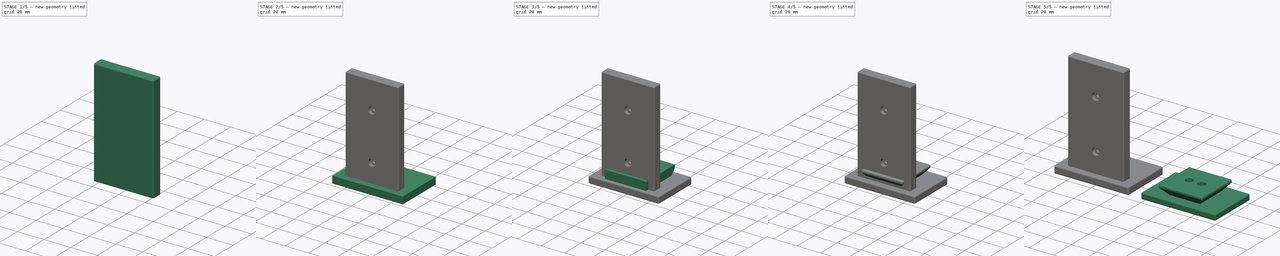
[diagram: build sequence overview — one tinted view per stage of 5, left to right]
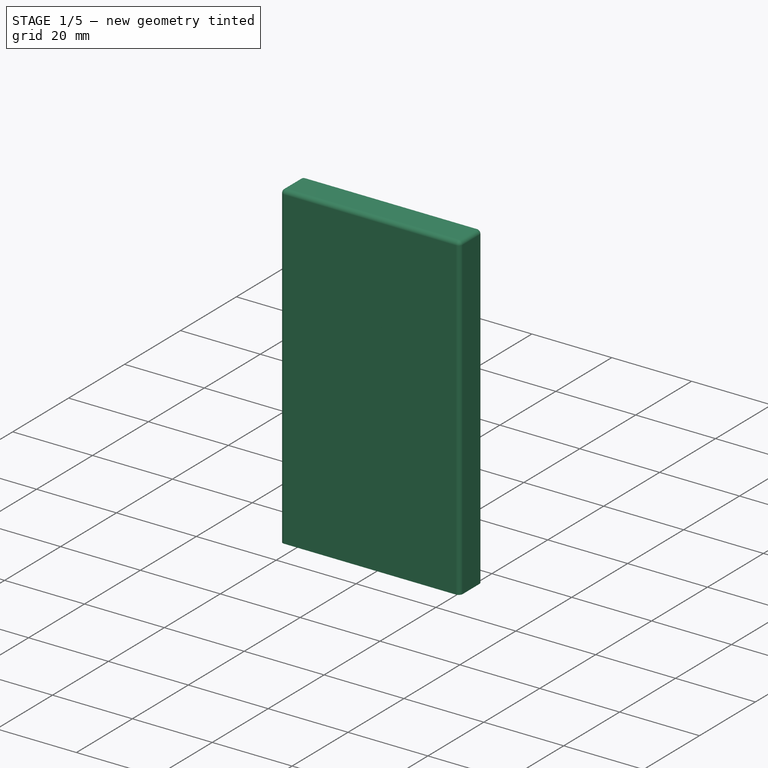
[diagram: stage 1 of 5 — iso view after this stage's code; geometry added in this stage tinted green]
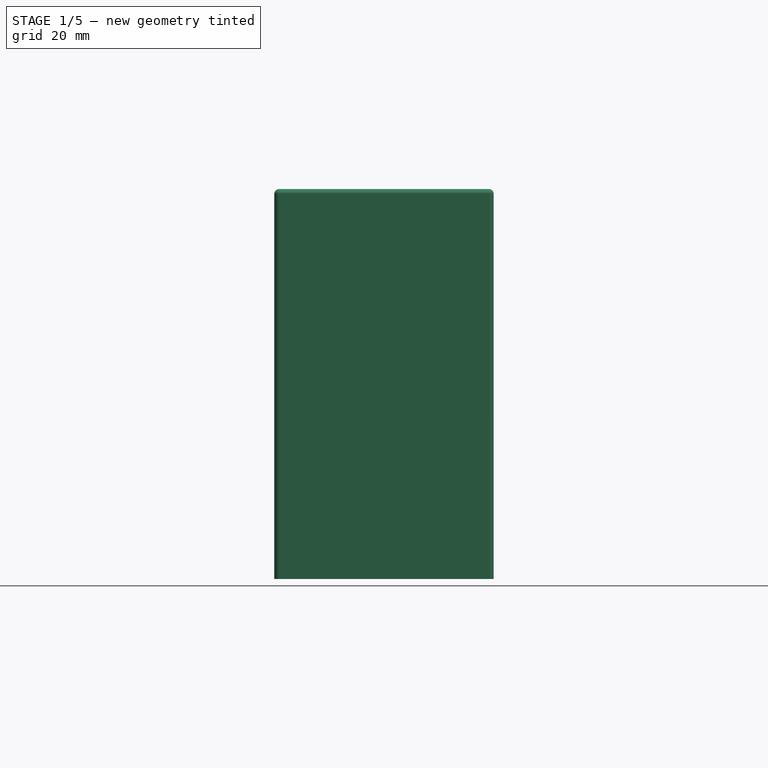
[diagram: stage 1 of 5 — front view after this stage's code; geometry added in this stage tinted green]
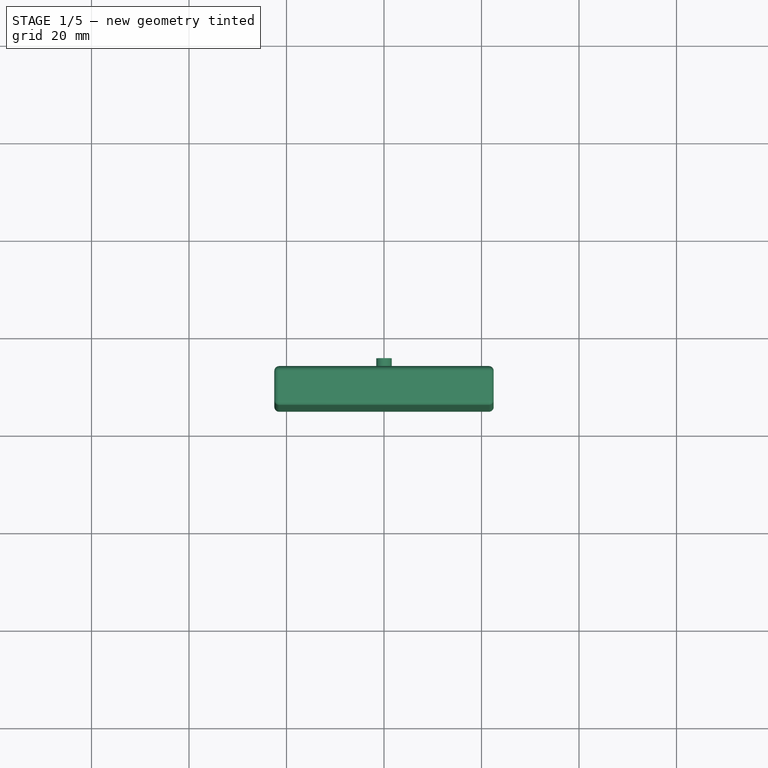
[diagram: stage 1 of 5 — top view after this stage's code; geometry added in this stage tinted green]
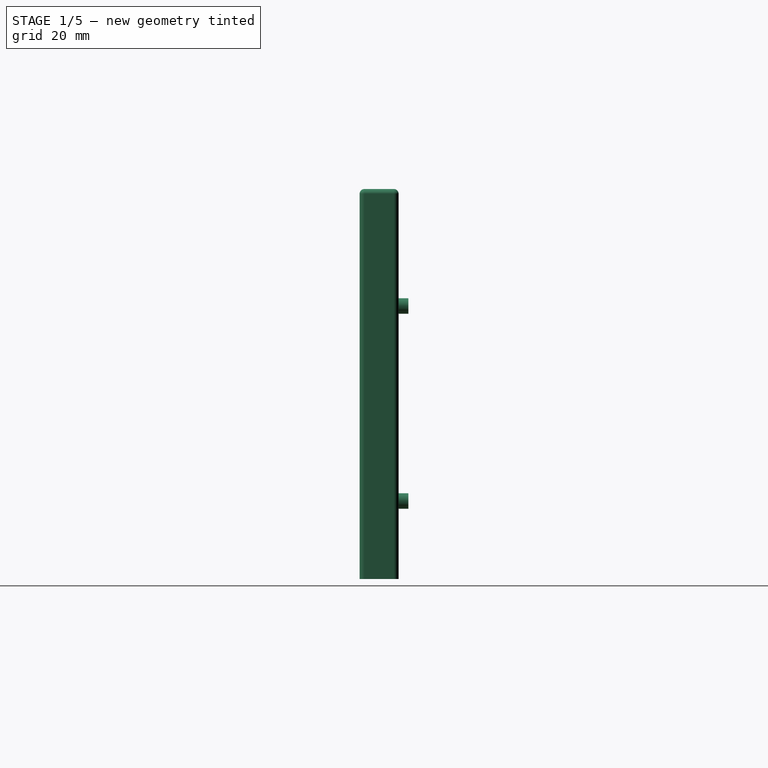
[diagram: stage 1 of 5 — right view after this stage's code; geometry added in this stage tinted green]
FCSTD DOCUMENT  (FreeCAD 0.15R4671 (Git))
Label: targusPiTripodAdapter
License: All rights reserved
LicenseURL: http://en.wikipedia.org/wiki/All_rights_reserved
objects: Part::Cylinder×10, Sketcher::SketchObject×8, Part::Extrusion×8, Part::Cut×7, Part::MultiFuse×5, Part::Fillet×4, Part::Mirroring×2
note: 44 computed .brp shape members not serialized (recipe doc carries the construction recipe); baked Part::Feature solids carry a one-line shape summary decoded from their .brp

FEATURE [Sketcher::SketchObject] Sketch008
  Placement = pos=(0,-15,6) rot=(1,0,0;1.5708rad)
  sketch-geometry (4):
    g0: LineSegment StartX=22.5 StartY=0 StartZ=0 EndX=-22.5 EndY=0 EndZ=0
    g1: LineSegment StartX=-22.5 StartY=0 StartZ=0 EndX=-22.5 EndY=80 EndZ=0
    g2: LineSegment StartX=-22.5 StartY=80 StartZ=0 EndX=22.5 EndY=80 EndZ=0
    g3: LineSegment StartX=22.5 StartY=80 StartZ=0 EndX=22.5 EndY=0 EndZ=0
  constraints (12):
    c: Coincident(g0,g1)
    c: Coincident(g1,g2)
    c: Coincident(g2,g3)
    c: Coincident(g3,g0)
    c: Horizontal(g0)
    c: Horizontal(g2)
    c: Vertical(g1)
    c: Vertical(g3)
    c: DistanceX(g0,g0) = -45
    c: DistanceY(g0,g2) = 80
    c: DistanceY(g-1,g0) = 0
    c: DistanceX(g-1,g0) = 22.5
FEATURE [Part::Extrusion] Extrude009  label="Extrude012"
  Base = -> Sketch008
  Dir = (0,8,0)
  Solid = true
FEATURE [Part::Fillet] Fillet003
  Base = -> Extrude009
  Edges = 8 edges r=1: [Edge5,Edge6,Edge7,Edge8,Edge9,Edge10,Edge11,Edge12]
FEATURE [Part::Cylinder] Cylinder006
  Angle = 360
  Height = 10
  Placement = pos=(0,-15,62) rot=(-0.57735,-0.57735,-0.57735;2.0944rad)
  Radius = 1.6
FEATURE [Part::Cylinder] Cylinder007
  Angle = 360
  Height = 10
  Placement = pos=(0,-15,22) rot=(-0.57735,-0.57735,-0.57735;2.0944rad)
  Radius = 1.6
FEATURE [Part::Cylinder] Cylinder008
  Angle = 360
  Height = 3
  Placement = pos=(0,-15,62) rot=(-0.57735,-0.57735,-0.57735;2.0944rad)
  Radius = 3
FEATURE [Part::Cylinder] Cylinder009
  Angle = 360
  Height = 3
  Placement = pos=(0,-15,22) rot=(-0.57735,-0.57735,-0.57735;2.0944rad)
  Radius = 3
FEATURE [Part::MultiFuse] Fusion003
  Shapes = -> [Cylinder009,Cylinder008,Cylinder006,Cylinder007]
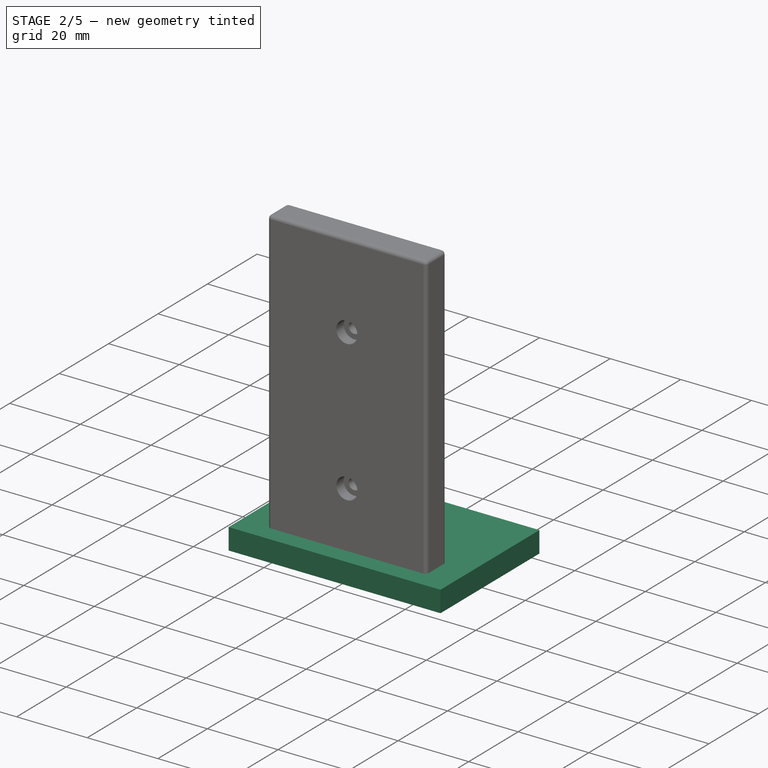
[diagram: stage 2 of 5 — iso view after this stage's code; geometry added in this stage tinted green]
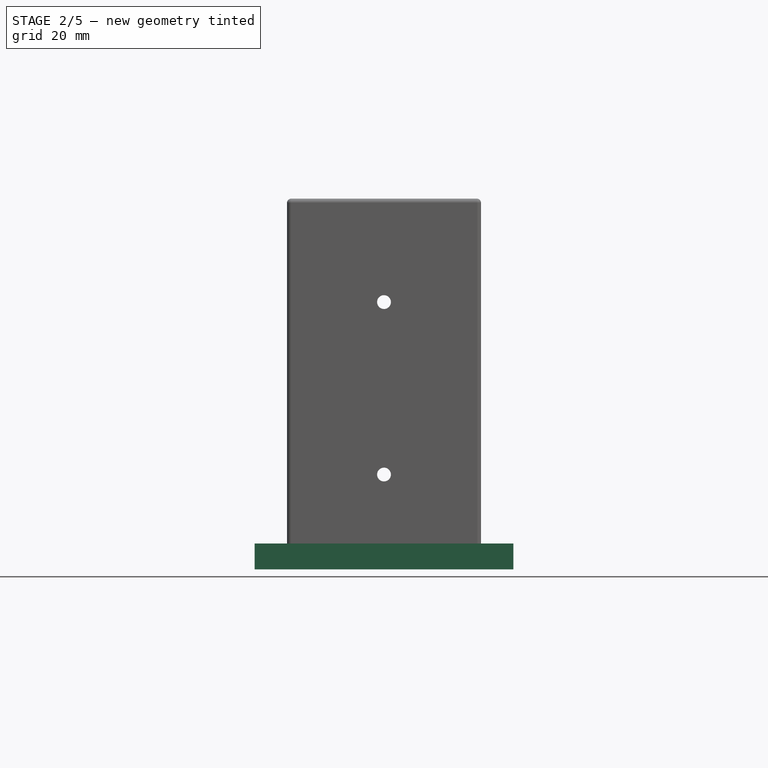
[diagram: stage 2 of 5 — front view after this stage's code; geometry added in this stage tinted green]
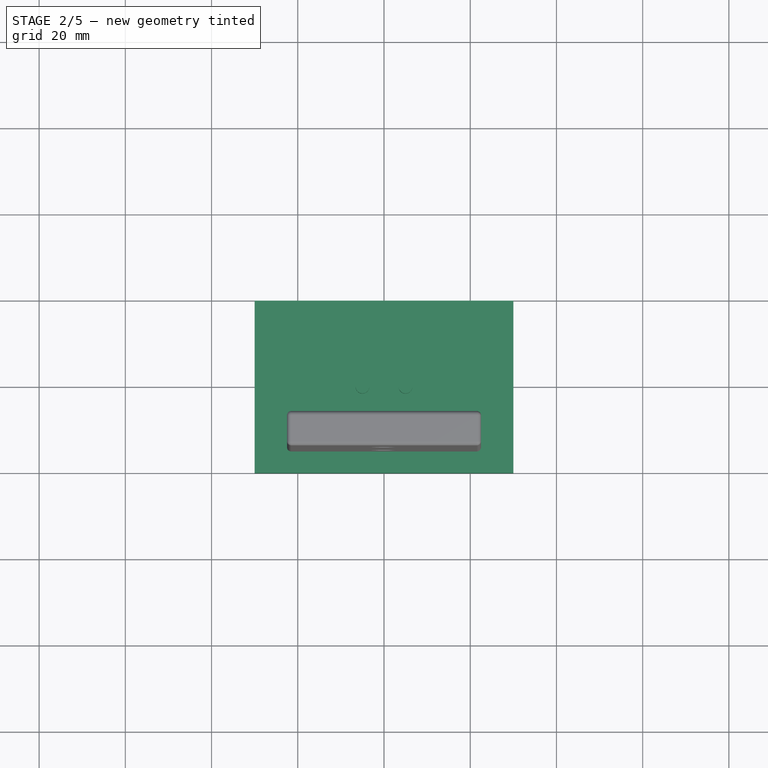
[diagram: stage 2 of 5 — top view after this stage's code; geometry added in this stage tinted green]
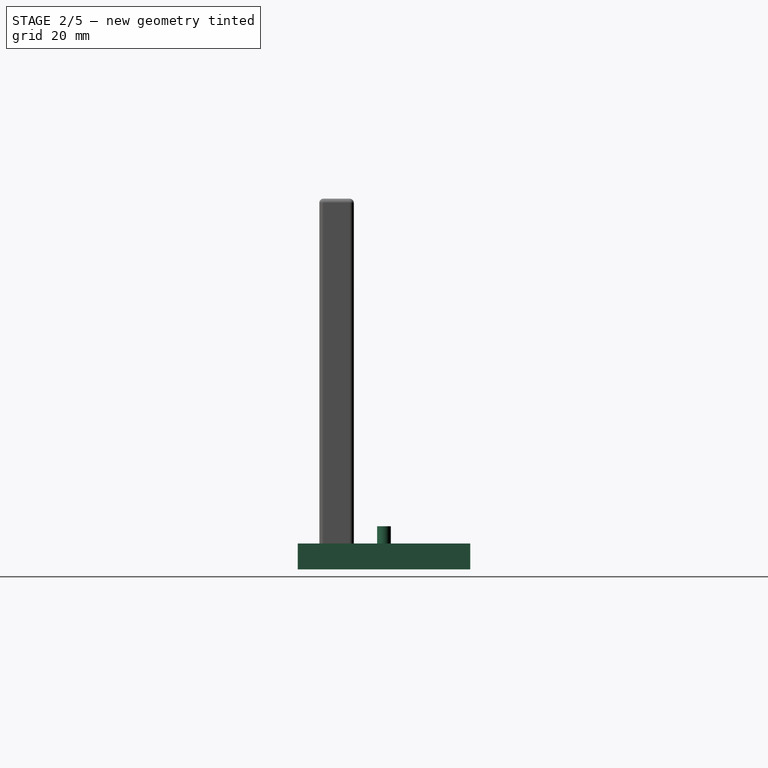
[diagram: stage 2 of 5 — right view after this stage's code; geometry added in this stage tinted green]
FEATURE [Sketcher::SketchObject] Sketch005
  sketch-geometry (4):
    g0: LineSegment StartX=-30 StartY=20 StartZ=0 EndX=30 EndY=20 EndZ=0
    g1: LineSegment StartX=30 StartY=20 StartZ=0 EndX=30 EndY=-20 EndZ=0
    g2: LineSegment StartX=30 StartY=-20 StartZ=0 EndX=-30 EndY=-20 EndZ=0
    g3: LineSegment StartX=-30 StartY=-20 StartZ=0 EndX=-30 EndY=20 EndZ=0
  constraints (12):
    c: Coincident(g0,g1)
    c: Coincident(g1,g2)
    c: Coincident(g2,g3)
    c: Coincident(g3,g0)
    c: Horizontal(g0)
    c: Horizontal(g2)
    c: Vertical(g1)
    c: Vertical(g3)
    c: DistanceX(g0,g0) = -60
    c: DistanceY(g1,g0) = 40
    c: DistanceY(g-1,g1) = -20
    c: DistanceX(g-1,g0) = 30
FEATURE [Part::Extrusion] Extrude
  Base = -> Sketch005
  Dir = (0,0,6)
  Solid = true
FEATURE [Sketcher::SketchObject] Sketch006
  Placement = pos=(-5,0,3) rot=(0,0,1;0rad)
  sketch-geometry (7):
    g0: LineSegment StartX=1.6 StartY=-2.77128 StartZ=0 EndX=3.2 EndY=0 EndZ=0
    g1: LineSegment StartX=3.2 StartY=0 StartZ=0 EndX=1.6 EndY=2.77128 EndZ=0
    g2: LineSegment StartX=1.6 StartY=2.77128 StartZ=0 EndX=-1.6 EndY=2.77128 EndZ=0
    g3: LineSegment StartX=-1.6 StartY=2.77128 StartZ=0 EndX=-3.2 EndY=0 EndZ=0
    g4: LineSegment StartX=-3.2 StartY=0 StartZ=0 EndX=-1.6 EndY=-2.77128 EndZ=0
    g5: LineSegment StartX=-1.6 StartY=-2.77128 StartZ=0 EndX=1.6 EndY=-2.77128 EndZ=0
    g6: Circle [constr] CenterX=0 CenterY=0 CenterZ=0 NormalX=0 NormalY=0 NormalZ=1 Radius=3.2
  constraints (18):
    c: Coincident(g0,g1)
    c: Coincident(g1,g2)
    c: Coincident(g2,g3)
    c: Coincident(g3,g4)
    c: Coincident(g4,g5)
    c: Coincident(g5,g0)
    c: Equal(g0, g1-g5) x5
    c: PointOnObject(g0,g6)
    c: PointOnObject(g1,g6)
    c: PointOnObject(g2,g6)
    c: PointOnObject(g3,g6)
    c: PointOnObject(g4,g6)
    c: PointOnObject(g5,g6)
    c: Coincident(g3,g-1)
    c: DistanceX(g-1,g6) = 0
    c: DistanceY(g-1,g6) = 0
    c: Radius(g6) = 3.2
    c: DistanceY(g-1,g0) = 0
FEATURE [Part::Extrusion] Extrude007  label="Extrude010"
  Base = -> Sketch006
  Dir = (0,0,3)
  Solid = true
FEATURE [Sketcher::SketchObject] Sketch007
  Placement = pos=(5,0,3) rot=(0,0,1;0rad)
  sketch-geometry (7):
    g0: LineSegment StartX=1.6 StartY=-2.77128 StartZ=0 EndX=3.2 EndY=0 EndZ=0
    g1: LineSegment StartX=3.2 StartY=0 StartZ=0 EndX=1.6 EndY=2.77128 EndZ=0
    g2: LineSegment StartX=1.6 StartY=2.77128 StartZ=0 EndX=-1.6 EndY=2.77128 EndZ=0
    g3: LineSegment StartX=-1.6 StartY=2.77128 StartZ=0 EndX=-3.2 EndY=0 EndZ=0
    g4: LineSegment StartX=-3.2 StartY=0 StartZ=0 EndX=-1.6 EndY=-2.77128 EndZ=0
    g5: LineSegment StartX=-1.6 StartY=-2.77128 StartZ=0 EndX=1.6 EndY=-2.77128 EndZ=0
    g6: Circle [constr] CenterX=0 CenterY=0 CenterZ=0 NormalX=0 NormalY=0 NormalZ=1 Radius=3.2
  constraints (18):
    c: Coincident(g0,g1)
    c: Coincident(g1,g2)
    c: Coincident(g2,g3)
    c: Coincident(g3,g4)
    c: Coincident(g4,g5)
    c: Coincident(g5,g0)
    c: Equal(g0, g1-g5) x5
    c: PointOnObject(g0,g6)
    c: PointOnObject(g1,g6)
    c: PointOnObject(g2,g6)
    c: PointOnObject(g3,g6)
    c: PointOnObject(g4,g6)
    c: PointOnObject(g5,g6)
    c: Coincident(g3,g-1)
    c: DistanceX(g-1,g6) = 0
    c: DistanceY(g-1,g6) = 0
    c: Radius(g6) = 3.2
    c: DistanceY(g-1,g0) = 0
FEATURE [Part::Extrusion] Extrude008  label="Extrude011"
  Base = -> Sketch007
  Dir = (0,0,3)
  Solid = true
FEATURE [Part::Cylinder] Cylinder004
  Angle = 360
  Height = 10
  Placement = pos=(5,0,0) rot=(0,0,1;0rad)
  Radius = 1.6
FEATURE [Part::Cylinder] Cylinder005
  Angle = 360
  Height = 10
  Placement = pos=(-5,0,0) rot=(0,0,1;0rad)
  Radius = 1.6
FEATURE [Part::MultiFuse] Fusion002
  Shapes = -> [Cylinder004,Cylinder005,Extrude007,Extrude008]
FEATURE [Part::Cut] Cut006
  Base = -> Fillet003
  Tool = -> Fusion003
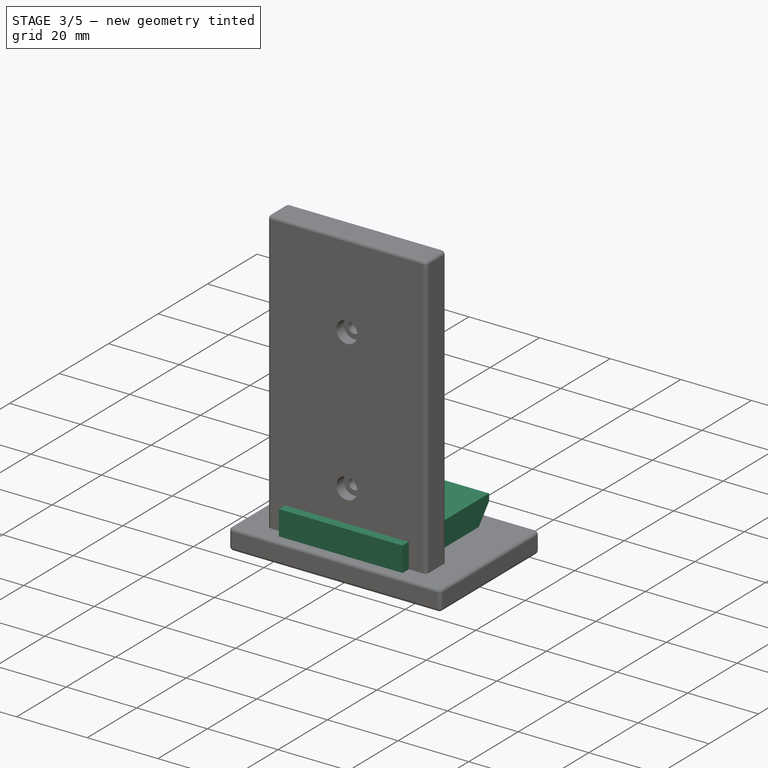
[diagram: stage 3 of 5 — iso view after this stage's code; geometry added in this stage tinted green]
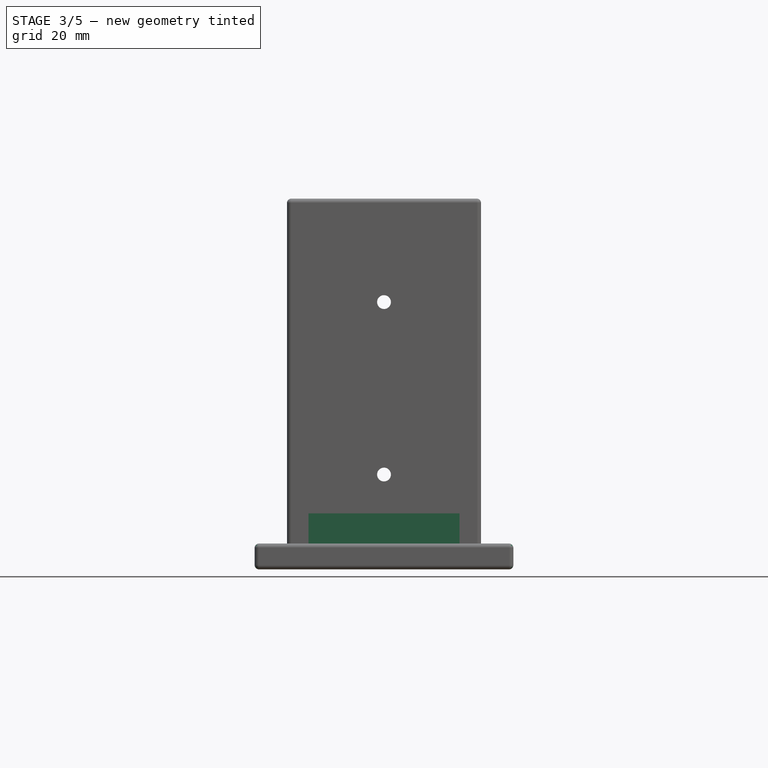
[diagram: stage 3 of 5 — front view after this stage's code; geometry added in this stage tinted green]
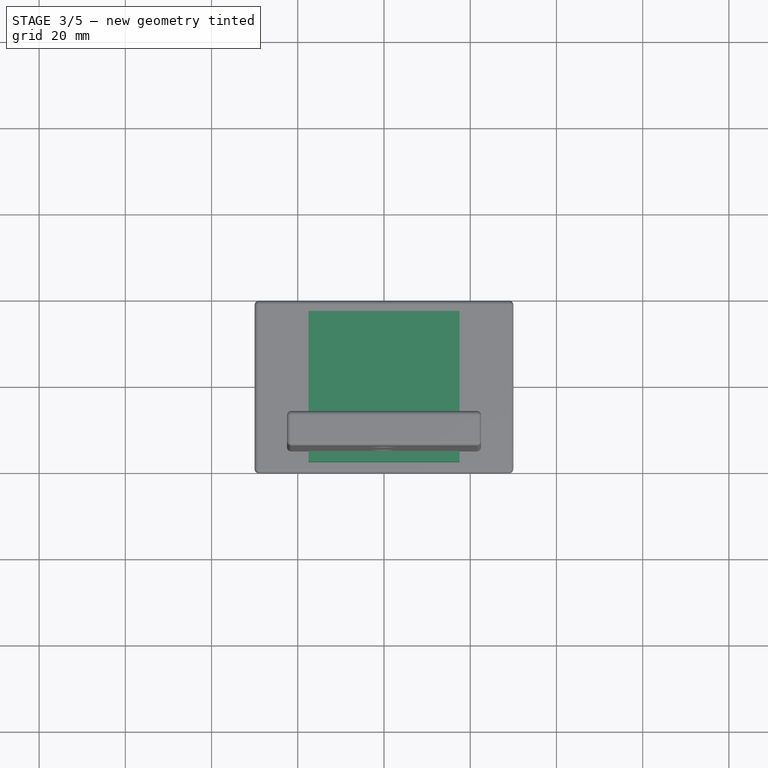
[diagram: stage 3 of 5 — top view after this stage's code; geometry added in this stage tinted green]
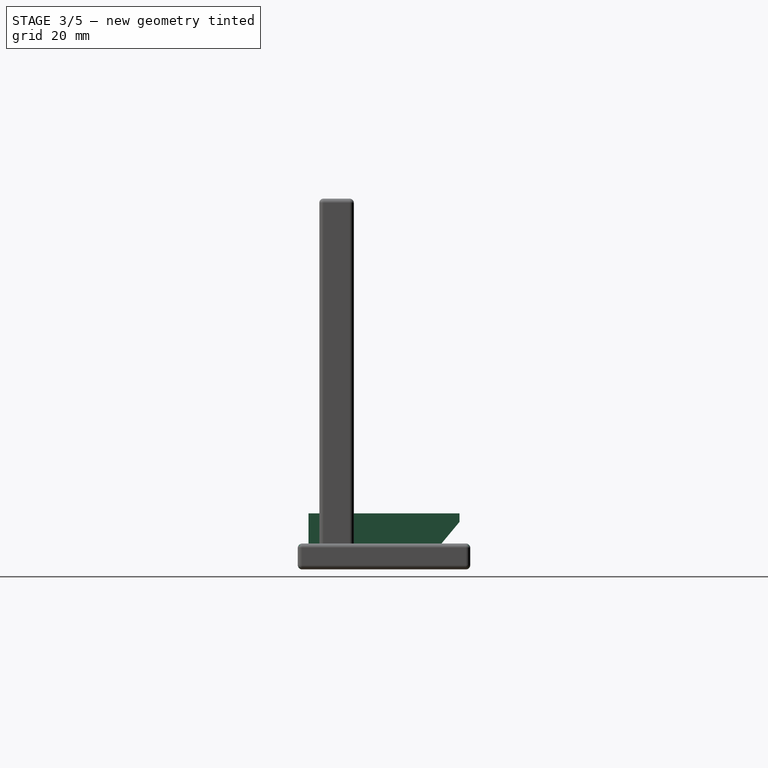
[diagram: stage 3 of 5 — right view after this stage's code; geometry added in this stage tinted green]
FEATURE [Sketcher::SketchObject] Sketch
  sketch-geometry (4):
    g0: LineSegment StartX=-30 StartY=20 StartZ=0 EndX=30 EndY=20 EndZ=0
    g1: LineSegment StartX=30 StartY=20 StartZ=0 EndX=30 EndY=-20 EndZ=0
    g2: LineSegment StartX=30 StartY=-20 StartZ=0 EndX=-30 EndY=-20 EndZ=0
    g3: LineSegment StartX=-30 StartY=-20 StartZ=0 EndX=-30 EndY=20 EndZ=0
  constraints (12):
    c: Coincident(g0,g1)
    c: Coincident(g1,g2)
    c: Coincident(g2,g3)
    c: Coincident(g3,g0)
    c: Horizontal(g0)
    c: Horizontal(g2)
    c: Vertical(g1)
    c: Vertical(g3)
    c: DistanceX(g0,g0) = -60
    c: DistanceY(g1,g0) = 40
    c: DistanceY(g-1,g1) = -20
    c: DistanceX(g-1,g0) = 30
FEATURE [Part::Extrusion] Extrude001
  Base = -> Sketch
  Dir = (0,0,5)
  Solid = true
FEATURE [Sketcher::SketchObject] Sketch001
  sketch-geometry (4):
    g0: LineSegment StartX=-17.5 StartY=-17.5 StartZ=0 EndX=17.5 EndY=-17.5 EndZ=0
    g1: LineSegment StartX=17.5 StartY=-17.5 StartZ=0 EndX=17.5 EndY=17.5 EndZ=0
    g2: LineSegment StartX=17.5 StartY=17.5 StartZ=0 EndX=-17.5 EndY=17.5 EndZ=0
    g3: LineSegment StartX=-17.5 StartY=17.5 StartZ=0 EndX=-17.5 EndY=-17.5 EndZ=0
  constraints (12):
    c: Coincident(g0,g1)
    c: Coincident(g1,g2)
    c: Coincident(g2,g3)
    c: Coincident(g3,g0)
    c: Horizontal(g0)
    c: Horizontal(g2)
    c: Vertical(g1)
    c: Vertical(g3)
    c: DistanceX(g0,g0) = -35
    c: DistanceX(g-1,g0) = -17.5
    c: DistanceY(g-1,g0) = -17.5
    c: DistanceY(g0,g1) = 35
FEATURE [Part::Extrusion] Extrude002
  Base = -> Sketch001
  Dir = (0,0,8)
  Placement = pos=(0,0,5) rot=(0,0,1;0rad)
  Solid = true
FEATURE [Sketcher::SketchObject] Sketch004
  Placement = pos=(0,0,0) rot=(0.57735,0.57735,0.57735;2.0944rad)
  sketch-geometry (3):
    g0: LineSegment StartX=12.5 StartY=5 StartZ=0 EndX=17.5 EndY=11 EndZ=0
    g1: LineSegment StartX=17.5 StartY=11 StartZ=0 EndX=17.5 EndY=5 EndZ=0
    g2: LineSegment StartX=17.5 StartY=5 StartZ=0 EndX=12.5 EndY=5 EndZ=0
  constraints (9):
    c: Coincident(g1,g0)
    c: Vertical(g1)
    c: DistanceX(g1,g0) = -5
    c: DistanceY(g1,g0) = 6
    c: DistanceY(g-1,g1) = 5
    c: Coincident(g2,g1)
    c: Coincident(g2,g0)
    c: Horizontal(g2)
    c: DistanceX(g-1,g0) = 12.5
FEATURE [Part::Extrusion] Extrude005  label="Extrude006"
  Base = -> Sketch004
  Dir = (35,0,0)
  Placement = pos=(-17.5,0,0) rot=(0,0,1;0rad)
  Solid = true
FEATURE [Part::Cut] Cut
  Base = -> Extrude002
  Tool = -> Extrude005
FEATURE [Part::Fillet] Fillet001
  Base = -> Extrude001
  Edges = 12 edges r=1: [Edge1,Edge2,Edge3,Edge4,Edge5,Edge6,Edge7,Edge8,Edge9,Edge10,Edge11,Edge12]
FEATURE [Part::Fillet] Fillet002
  Base = -> Extrude
  Edges = 12 edges r=1: [Edge1,Edge2,Edge3,Edge4,Edge5,Edge6,Edge7,Edge8,Edge9,Edge10,Edge11,Edge12]
FEATURE [Part::Cut] Cut005
  Base = -> Fillet002
  Tool = -> Fusion002
FEATURE [Part::MultiFuse] Fusion004
  Shapes = -> [Cut006,Cut005]
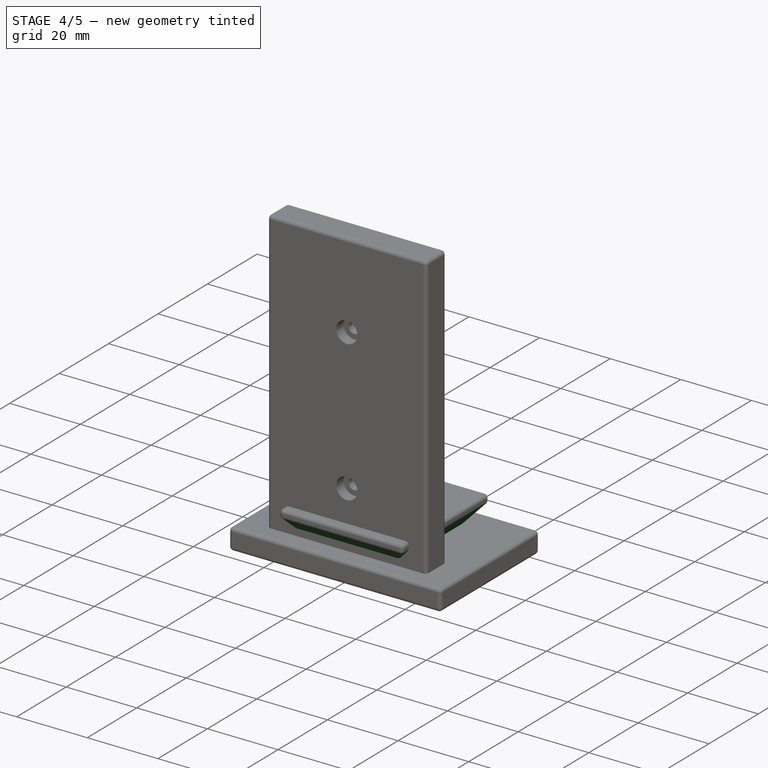
[diagram: stage 4 of 5 — iso view after this stage's code; geometry added in this stage tinted green]
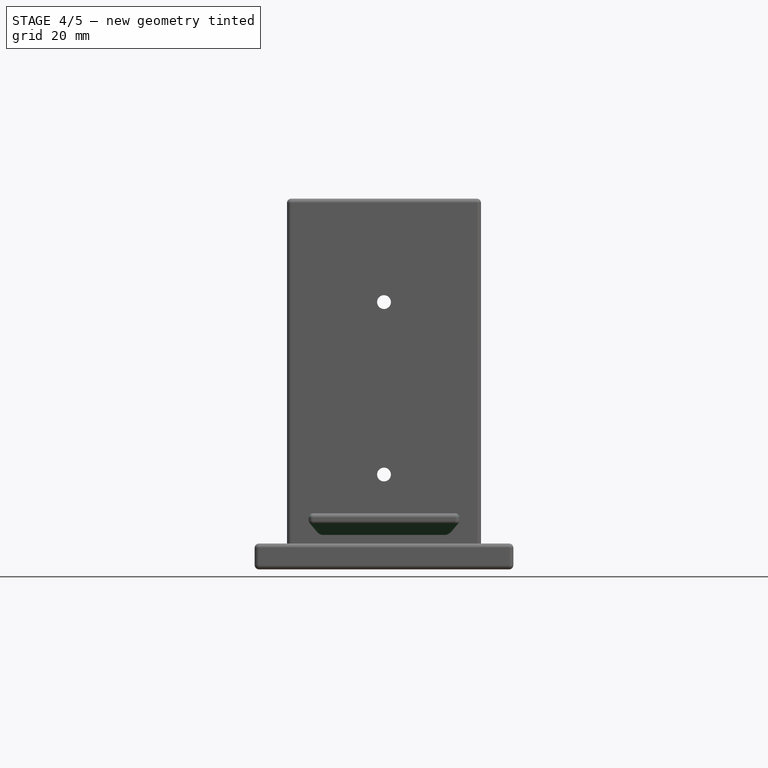
[diagram: stage 4 of 5 — front view after this stage's code; geometry added in this stage tinted green]
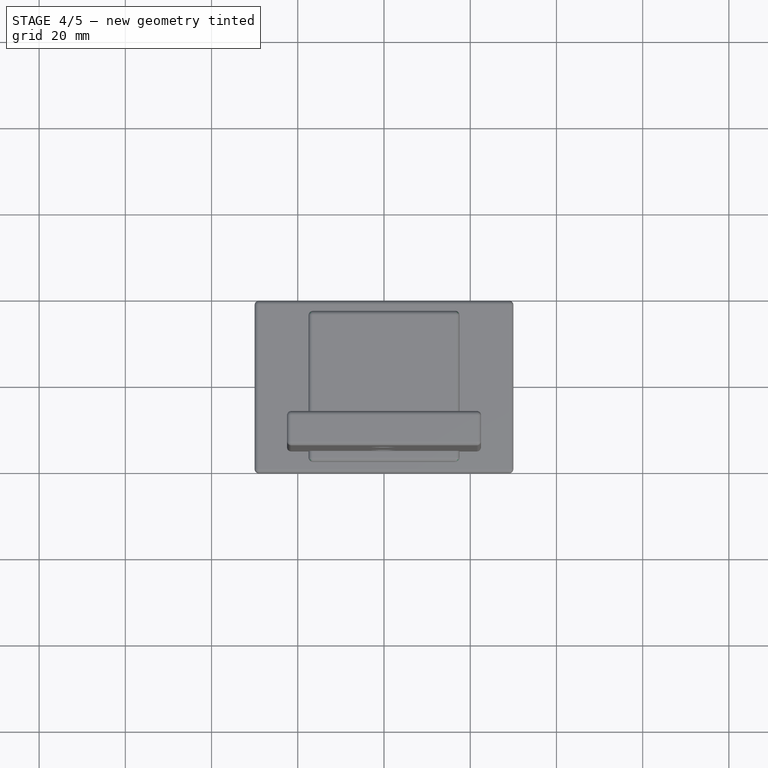
[diagram: stage 4 of 5 — top view after this stage's code; geometry added in this stage tinted green]
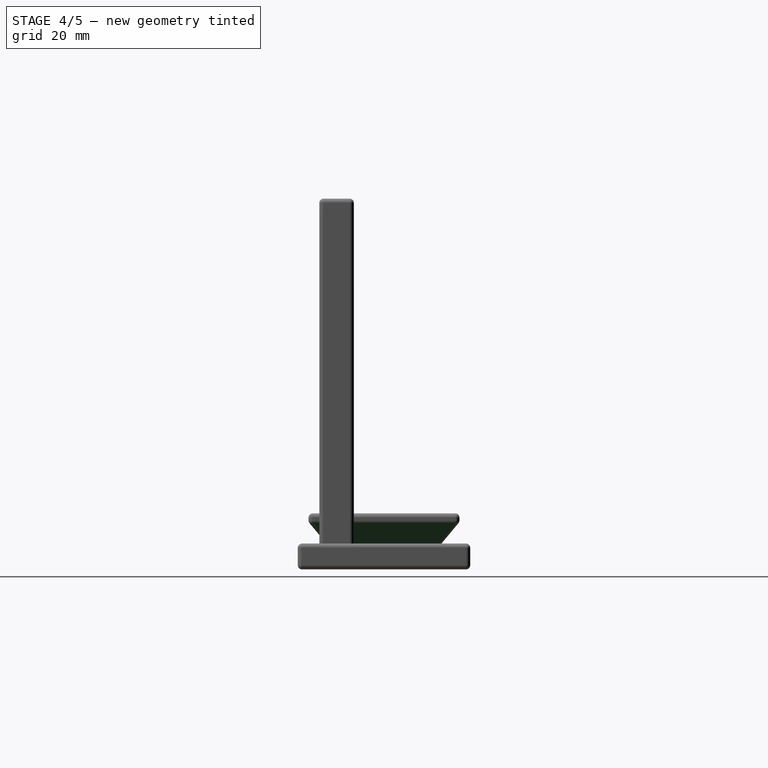
[diagram: stage 4 of 5 — right view after this stage's code; geometry added in this stage tinted green]
FEATURE [Sketcher::SketchObject] Sketch002
  Placement = pos=(0,0,0) rot=(1,0,0;1.5708rad)
  sketch-geometry (3):
    g0: LineSegment StartX=17.5 StartY=11 StartZ=0 EndX=17.5 EndY=5 EndZ=0
    g1: LineSegment StartX=12.5 StartY=5 StartZ=0 EndX=17.5 EndY=11 EndZ=0
    g2: LineSegment StartX=17.5 StartY=5 StartZ=0 EndX=12.5 EndY=5 EndZ=0
  constraints (9):
    c: Vertical(g0)
    c: PointOnObject(g1,g0)
    c: Coincident(g2,g0)
    c: Coincident(g2,g1)
    c: Horizontal(g2)
    c: DistanceX(g-1,g1) = 12.5
    c: DistanceX(g0,g1) = -5
    c: DistanceY(g0,g0) = 6
    c: DistanceY(g-1,g0) = 5
FEATURE [Part::Extrusion] Extrude003
  Base = -> Sketch002
  Dir = (0,35,0)
  Placement = pos=(0,-17.5,0) rot=(0,0,1;0rad)
  Solid = true
FEATURE [Part::Mirroring] Part__Mirroring  label="Extrude006 (Mirror #1)"
  Base = (0,0,0)
  Normal = (0,1,0)
  Source = -> Extrude005
FEATURE [Part::Mirroring] Part__Mirroring001  label="Extrude003 (Mirror #2)"
  Base = (0,0,0)
  Normal = (1,0,0)
  Source = -> Extrude003
FEATURE [Part::Cut] Cut001
  Base = -> Cut
  Tool = -> Extrude003
FEATURE [Part::Cut] Cut002
  Base = -> Cut001
  Tool = -> Part__Mirroring
FEATURE [Part::Cut] Cut003
  Base = -> Cut002
  Tool = -> Part__Mirroring001
FEATURE [Part::Fillet] Fillet
  Base = -> Cut003
  Edges = 20 edges r=1: [Edge1,Edge2,Edge3,Edge4,Edge5,Edge6,Edge7,Edge8,Edge9,Edge10,Edge11,Edge12,Edge13,Edge14,Edge15,Edge16,Edge17,Edge18,Edge19,Edge20]
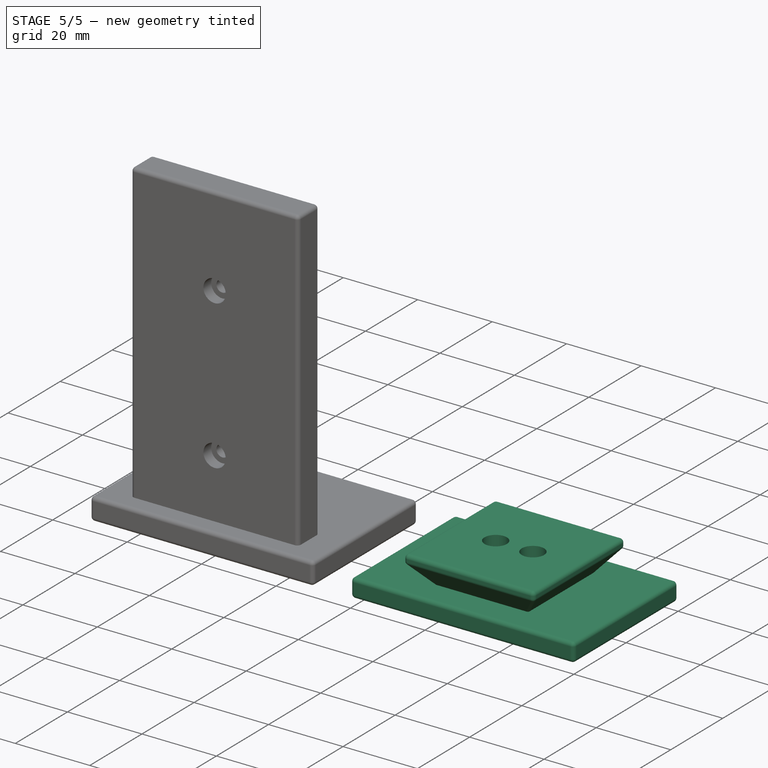
[diagram: stage 5 of 5 — iso view after this stage's code; geometry added in this stage tinted green]
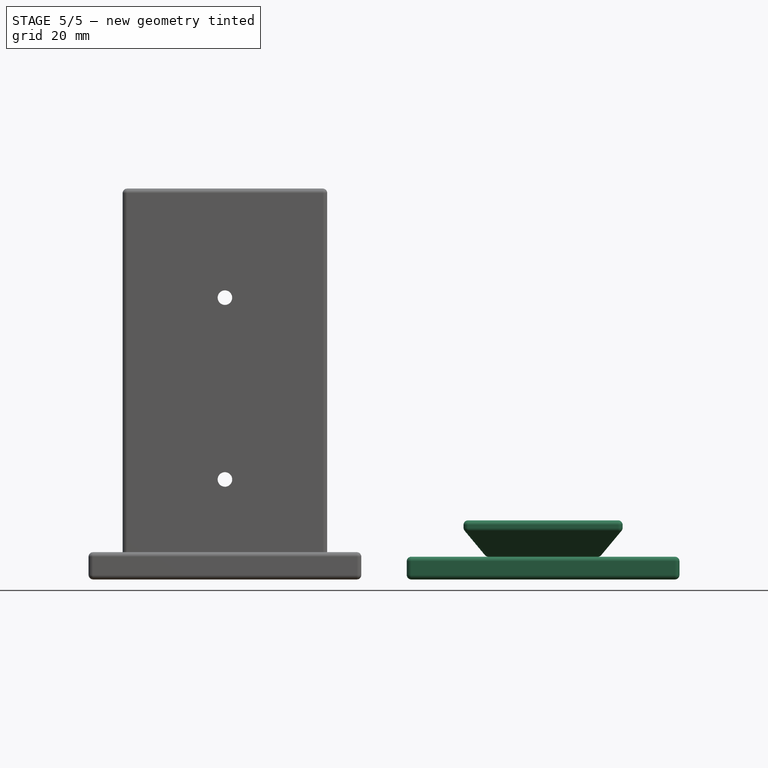
[diagram: stage 5 of 5 — front view after this stage's code; geometry added in this stage tinted green]
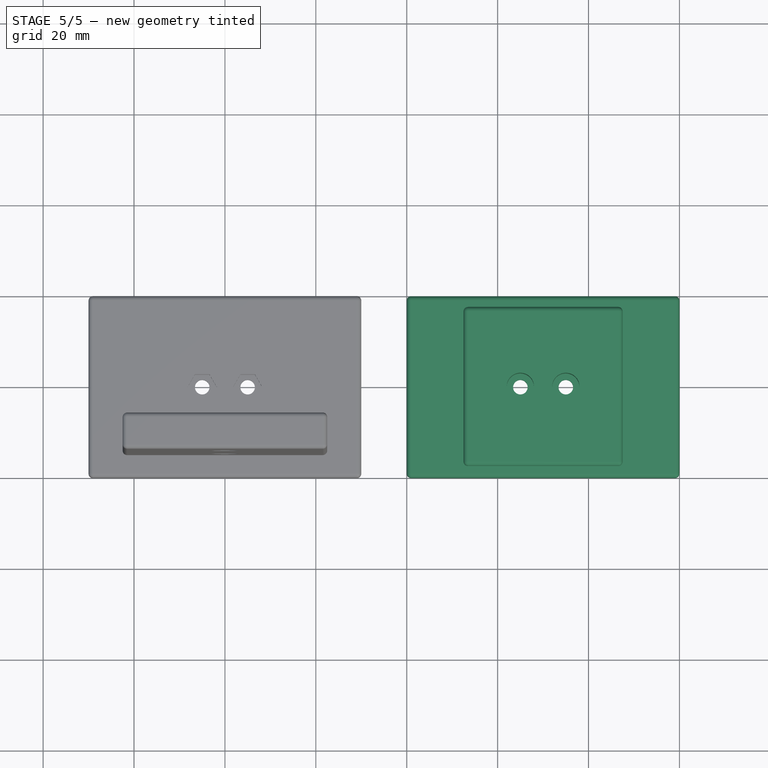
[diagram: stage 5 of 5 — top view after this stage's code; geometry added in this stage tinted green]
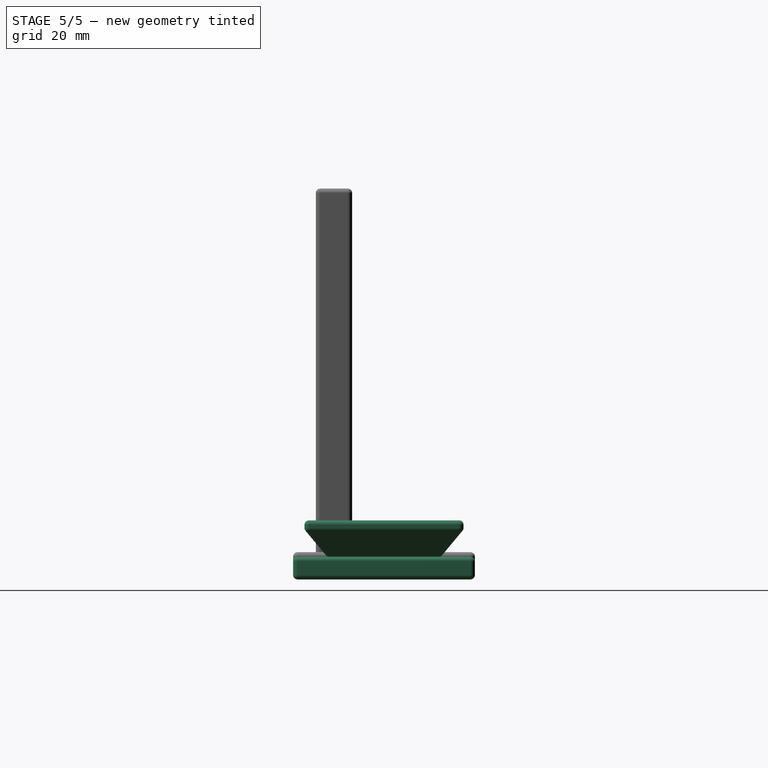
[diagram: stage 5 of 5 — right view after this stage's code; geometry added in this stage tinted green]
FEATURE [Part::Cylinder] Cylinder
  Angle = 360
  Height = 10
  Placement = pos=(5,0,0) rot=(0,0,1;0rad)
  Radius = 1.6
FEATURE [Part::Cylinder] Cylinder001
  Angle = 360
  Height = 10
  Placement = pos=(5,0,3) rot=(0,0,1;0rad)
  Radius = 3
FEATURE [Part::Cylinder] Cylinder002
  Angle = 360
  Height = 10
  Placement = pos=(-5,0,3) rot=(0,0,1;0rad)
  Radius = 3
FEATURE [Part::Cylinder] Cylinder003
  Angle = 360
  Height = 10
  Placement = pos=(-5,0,0) rot=(0,0,1;0rad)
  Radius = 1.6
FEATURE [Part::MultiFuse] Fusion
  Shapes = -> [Cylinder,Cylinder001,Cylinder002,Cylinder003]
FEATURE [Part::MultiFuse] Fusion001
  Shapes = -> [Fillet,Fillet001]
FEATURE [Part::Cut] Cut004
  Base = -> Fusion001
  Placement = pos=(70,0,0) rot=(0,0,1;0rad)
  Tool = -> Fusion
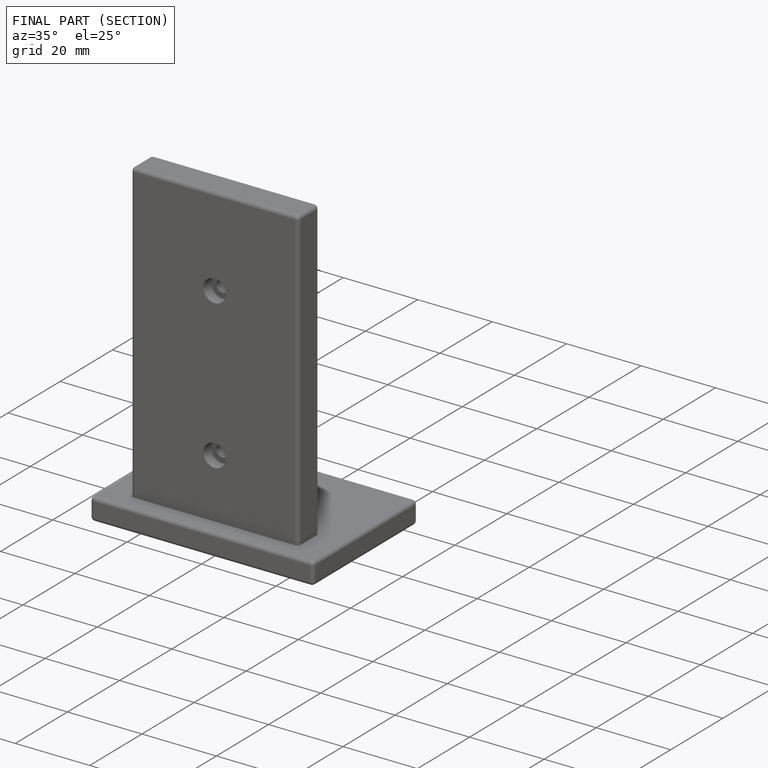
[diagram: finished part — half-section view (interior)]
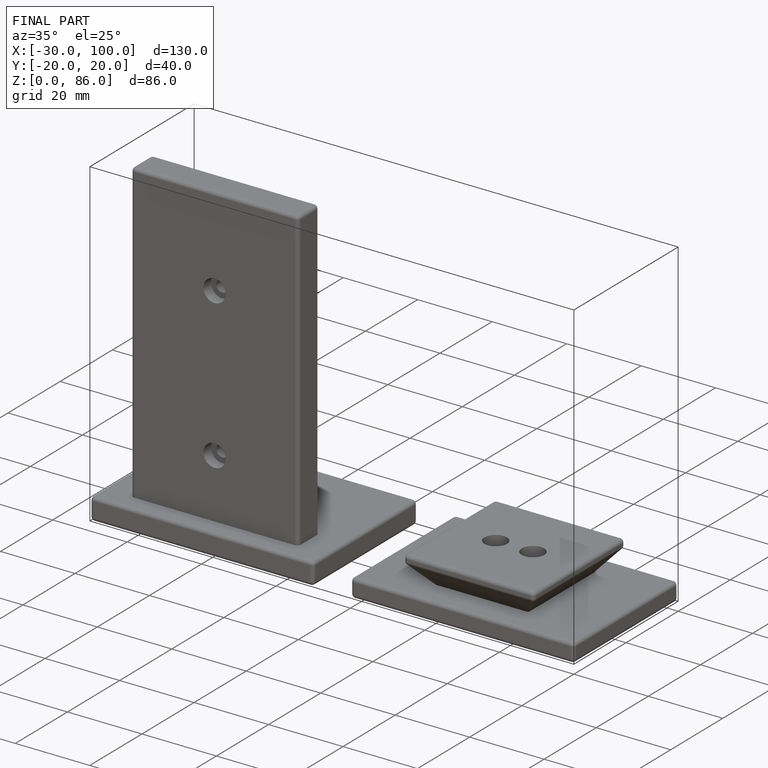
[diagram: finished part — iso view with bounding-box wireframe]
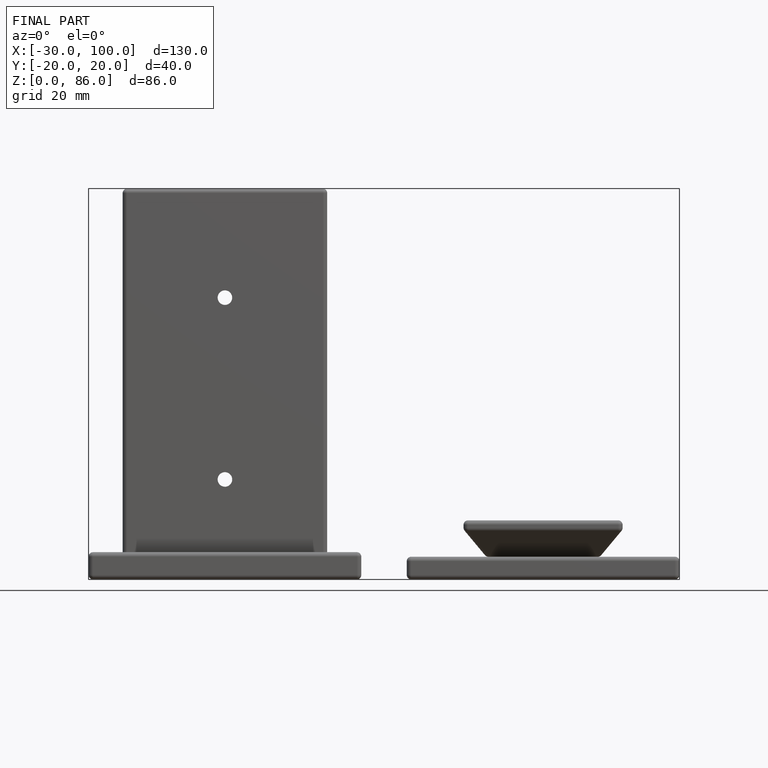
[diagram: finished part — front view with bounding-box wireframe]
